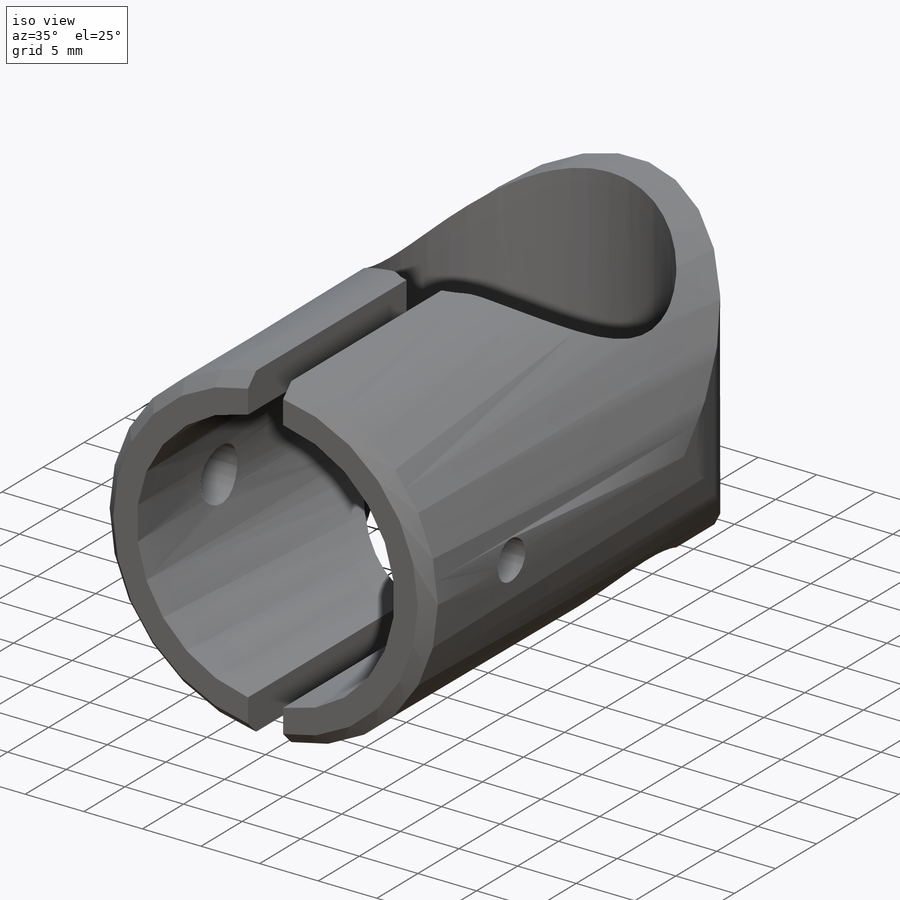
[diagram: iso view]
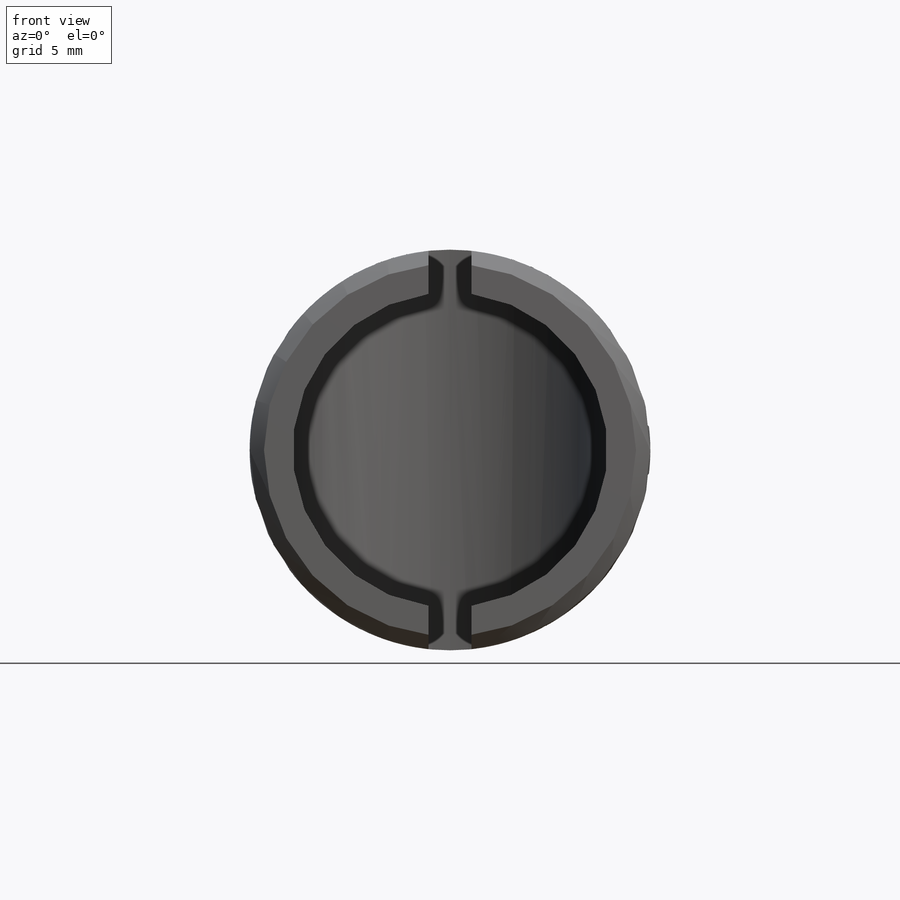
[diagram: front view]
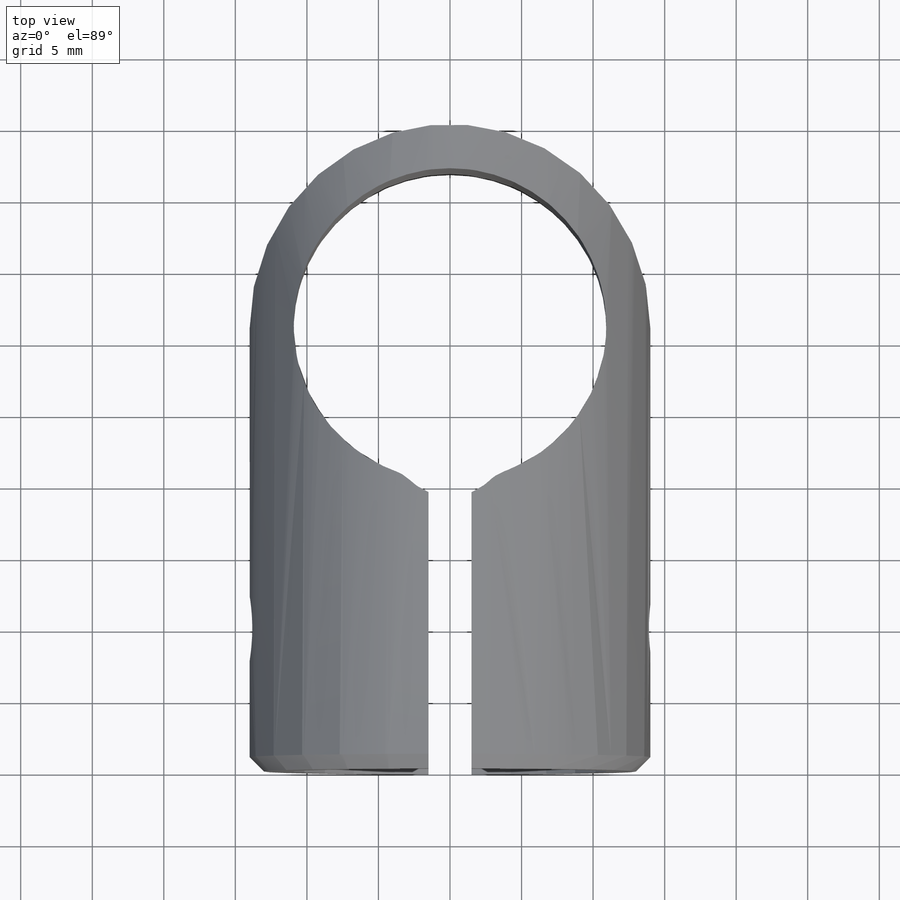
[diagram: top view]
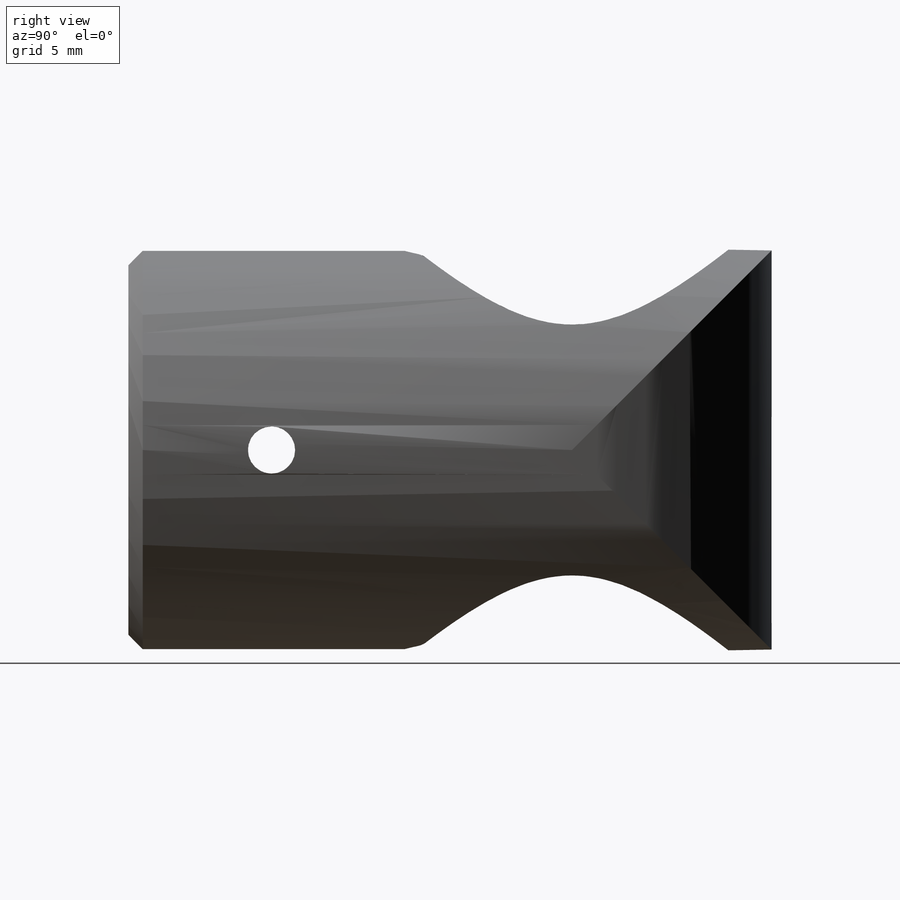
[diagram: right view]
SOLIDWORKS PART (.sldprt)
format: sldprt  version: not decoded by parser v0  size: 452,608 bytes
history: native  units: mm
features: sketch x10, plane x6, cut_extrude x4, hole x2, material x1, extrude x1, mirror x1, fillet x1, thread x1, chamfer x1 (+8 scaffold rows collapsed)
feature tree (36):
  scaffold x8  (default folders/planes/origin — collapsed)
  material  "Сплав 2024"
  plane  "Спереди"
  plane  "Сверху"
  plane  "Справа"
  sketch  "Эскиз1"  dims[D1=28.0mm]
  extrude  "Бобышка-Вытянуть1"  Depth=45mm
  plane  "Плоскость1"
  sketch  "Эскиз2"  dims[c1.D1=21.85mm c1.D3=12.5mm c2.D1=50.0mm c2.D2=14.0mm c2.D4=~17.514038mm c2.D3=~8.002838mm c3.D4=~2.271563mm c3.D3=3.0mm c4.D4=28.0mm c4.D3=1.5mm]
  cut_extrude  "Вырез-Вытянуть1"  [1 undecoded]
  sketch  "Эскиз3"  dims[D1=~5.348506mm]
  cut_extrude  "Вырез-Вытянуть2"  [1 undecoded]
  mirror  "Зеркальное отражение1"
  sketch  "Эскиз5"  dims[D1=22.0mm]
  cut_extrude  "Вырез-Вытянуть3"  Depth=31mm
  plane  "Плоскость2"
  sketch  "Эскиз7"  dims[D1=10.0mm]
  hole  "Отверстие с зазором M41"  [1 undecoded]
  sketch  "Эскиз9"
  sketch  "Эскиз8"  dims[hole-wizard template sketch: 50 standard entries collapsed; hole parameters above]
  sketch  "Эскиз10"  dims[D1=~9.269134mm D2=8.0mm]
  cut_extrude  "Вырез-Вытянуть5"  [1 undecoded]
  fillet  "Скругление2"  Radius=3mm
  plane  "Плоскость3"
  hole  "Отверстие обработанное метчиком M4x0.71"  [1 undecoded]
  sketch  "Эскиз12"
  sketch  "Эскиз11"  dims[hole-wizard template sketch: 47 standard entries collapsed; hole parameters kept: c15.Глубина сверла=11.5mm c15.D3=~14.816244mm c15.Угол заточки сверла=118.0deg]
  thread  "Отверстие резьбы1"  Diameter=3.124454mm  [1 undecoded]
  chamfer  "Фаска1"  Distance=1mm Angle=45deg
decode coverage: 13 of 21 modeling features carry decoded parameters
note: ~ marks probable driven/reference dimensions
note: 6 parameter values undecoded
summary: no parameter record found for 5 features
note: suppression state not decoded; provenance and decode notes live in map.json
